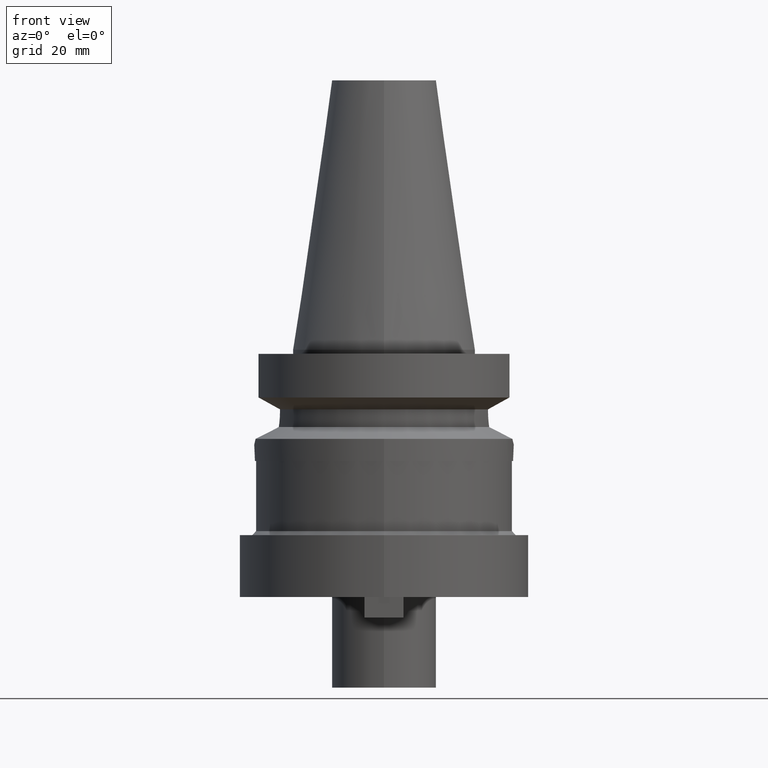
[diagram: clean part render]
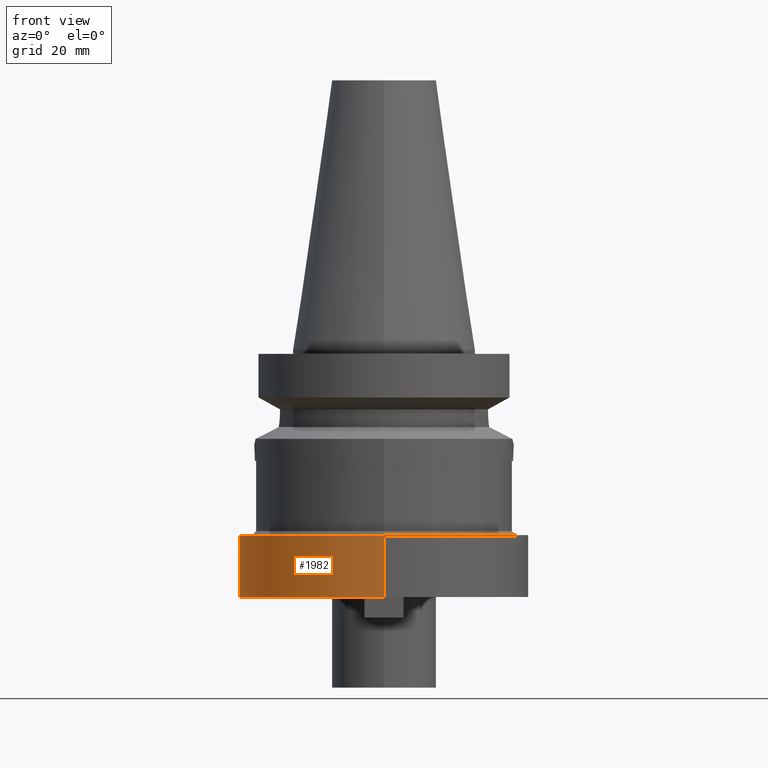
[diagram: same view with one face highlighted and labeled with its STEP entity id]
A machine part, front view. The second image highlights one B-rep face of the part: STEP entity #1982.
In plain terms, the highlighted cylindrical surface (partial cylindrical patch) has radius 35 mm, axis along (0, 0, -1).
Its self-contained STEP definition (entity closure, byte-faithful):
#706=CARTESIAN_POINT('',(0.E0,2.115822274887E-14,-4.5E1));
#707=DIRECTION('',(0.E0,0.E0,-1.E0));
#708=DIRECTION('',(0.E0,-1.E0,0.E0));
#709=AXIS2_PLACEMENT_3D('',#706,#707,#708);
#738=DIRECTION('',(0.E0,0.E0,-1.E0));
#739=VECTOR('',#738,1.5E1);
#740=CARTESIAN_POINT('',(0.E0,-3.5E1,-4.5E1));
#741=LINE('',#740,#739);
#745=DIRECTION('',(0.E0,0.E0,-1.E0));
#746=VECTOR('',#745,1.5E1);
#747=CARTESIAN_POINT('',(0.E0,3.5E1,-4.5E1));
#748=LINE('',#747,#746);
#760=CARTESIAN_POINT('',(0.E0,2.115822274887E-14,-6.E1));
#761=DIRECTION('',(0.E0,0.E0,1.E0));
#762=DIRECTION('',(0.E0,1.E0,0.E0));
#763=AXIS2_PLACEMENT_3D('',#760,#761,#762);
#1316=CARTESIAN_POINT('',(0.E0,-3.5E1,-6.E1));
#1317=CARTESIAN_POINT('',(0.E0,3.5E1,-6.E1));
#1318=VERTEX_POINT('',#1316);
#1319=VERTEX_POINT('',#1317);
#1336=CARTESIAN_POINT('',(0.E0,3.5E1,-4.5E1));
#1337=VERTEX_POINT('',#1336);
#1338=CARTESIAN_POINT('',(0.E0,-3.5E1,-4.5E1));
#1339=VERTEX_POINT('',#1338);
#1968=CARTESIAN_POINT('',(0.E0,2.115822274887E-14,7.277E1));
#1969=DIRECTION('',(0.E0,0.E0,-1.E0));
#1970=DIRECTION('',(0.E0,-1.E0,0.E0));
#1971=AXIS2_PLACEMENT_3D('',#1968,#1969,#1970);
#1972=CYLINDRICAL_SURFACE('',#1971,3.5E1);
#1974=ORIENTED_EDGE('',*,*,#1973,.F.);
#1975=ORIENTED_EDGE('',*,*,#1957,.F.);
#1977=ORIENTED_EDGE('',*,*,#1976,.T.);
#1979=ORIENTED_EDGE('',*,*,#1978,.F.);
#1980=EDGE_LOOP('',(#1974,#1975,#1977,#1979));
#1981=FACE_OUTER_BOUND('',#1980,.F.);
#710=CIRCLE('',#709,3.5E1);
#764=CIRCLE('',#763,3.5E1);
#1957=EDGE_CURVE('',#1339,#1337,#710,.T.);
#1973=EDGE_CURVE('',#1337,#1319,#748,.T.);
#1976=EDGE_CURVE('',#1339,#1318,#741,.T.);
#1978=EDGE_CURVE('',#1319,#1318,#764,.T.);
#1982=ADVANCED_FACE('',(#1981),#1972,.T.);